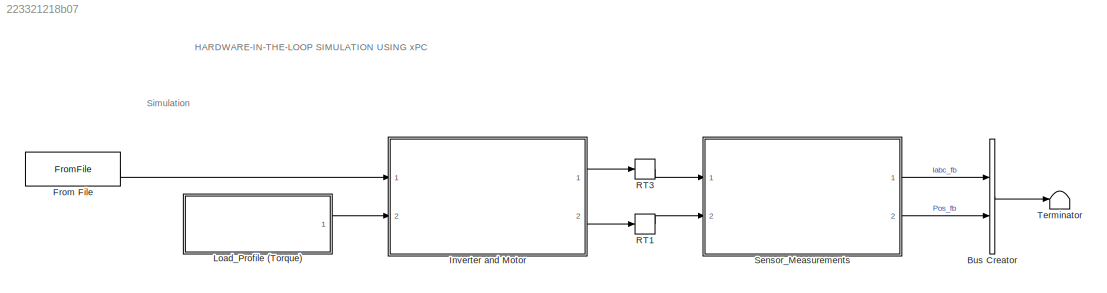
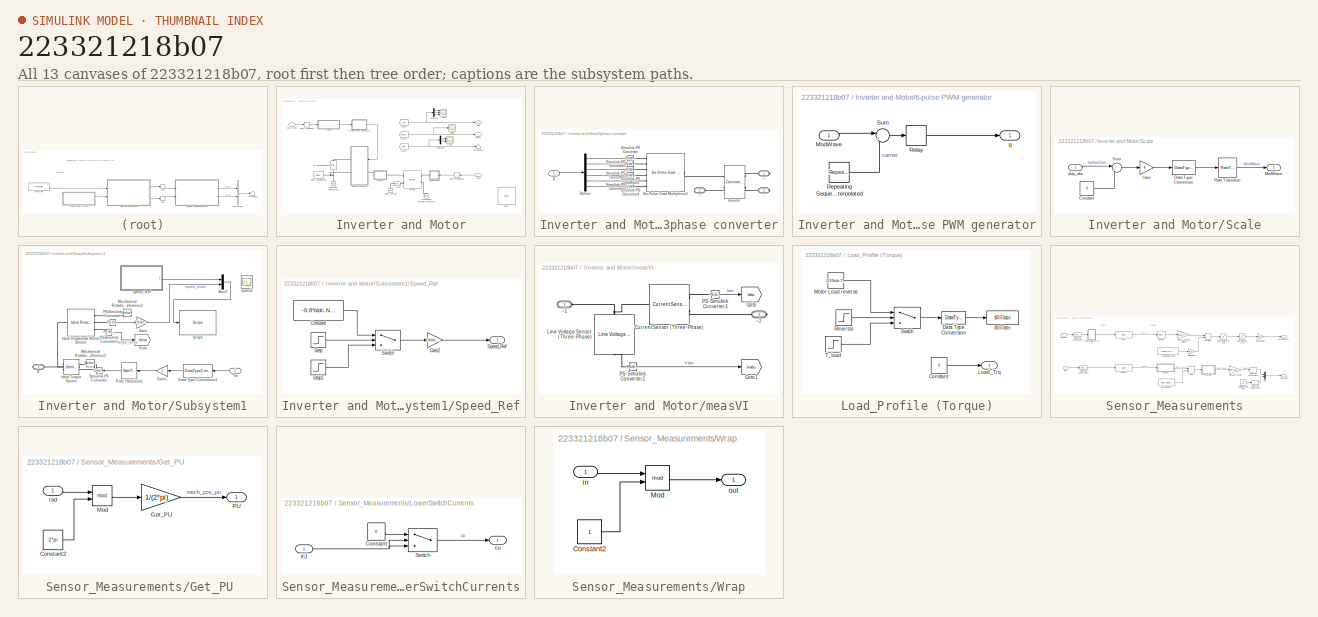
[diagram: thumbnail index - all 13 canvases of the model, root first then tree order]
MODEL slx_223321218b07
KIND model
CONFIG AbsTol = auto
CONFIG EnableMultiTasking = on
CONFIG FixedStep = auto
CONFIG MaxStep = auto
CONFIG MinStep = auto
CONFIG RelTol = 1e-3
CONFIG SampleTimeConstraint = Unconstrained
CONFIG Solver = FixedStepDiscrete
CONFIG SolverName = FixedStepDiscrete
CONFIG StartTime = 0.0
CONFIG StopTime = 2
BLOCK [BusCreator] Bus Creator
  DisplayOption = bar
  InheritFromInputs = on
  Inputs = 2
  Ports = [2, 1]
BLOCK [FromFile] From File
  FileName = dutycycle_xPC.mat
  SampleTime = 0
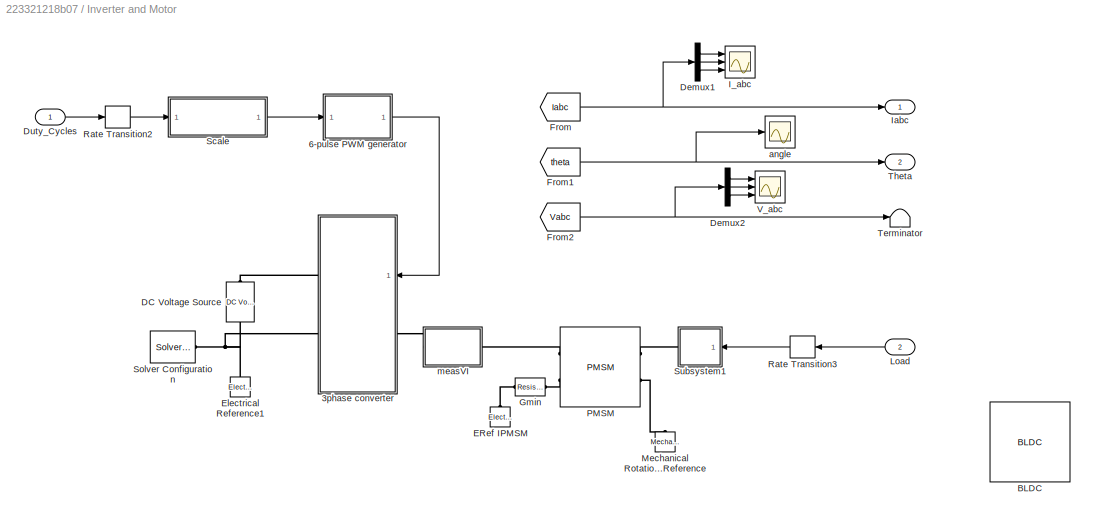
BLOCK [SubSystem] Inverter and Motor
  Ports = [2, 2]
  RequestExecContextInheritance = off
  VariantControl = get_param([bdroot '/Plant'],'Value')=='0'
BLOCK [SubSystem] Inverter and Motor/3phase converter
  NameLocation = top
  Ports = [1, 0, 0, 0, 0, 1, 2]
  RequestExecContextInheritance = off
BLOCK [PMIOPort] Inverter and Motor/3phase converter/+
  Side = Right
BLOCK [PMIOPort] Inverter and Motor/3phase converter/-
  Port = 3
  Side = Right
BLOCK [Demux] Inverter and Motor/3phase converter/Demux
  Outputs = 6
  Ports = [1, 6]
BLOCK [Reference] Inverter and Motor/3phase converter/Inverter  REF=ee_lib/Semiconductors &
Converters/Converters/Converter
(Three-Phase)
  Ports = [0, 0, 0, 0, 0, 2, 2]
  SourceBlock = ee_lib/Semiconductors &\nConverters/Converters/Converter\n(Three-Phase)
  SourceProductBaseCode = PS
  SourceType = Converter\n(Three-Phase)
BLOCK [Reference] Inverter and Motor/3phase converter/Simulink-PS Converter  REF=nesl_utility/Simulink-PS
Converter
  Ports = [1, 0, 0, 0, 0, 0, 1]
  SourceBlock = nesl_utility/Simulink-PS\nConverter
  SourceProductBaseCode = SS
  SourceType = Simulink-PS\nConverter
BLOCK [Reference] Inverter and Motor/3phase converter/Simulink-PS Converter1  REF=nesl_utility/Simulink-PS
Converter
  Ports = [1, 0, 0, 0, 0, 0, 1]
  SourceBlock = nesl_utility/Simulink-PS\nConverter
  SourceProductBaseCode = SS
  SourceType = Simulink-PS\nConverter
BLOCK [Reference] Inverter and Motor/3phase converter/Simulink-PS Converter2  REF=nesl_utility/Simulink-PS
Converter
  Ports = [1, 0, 0, 0, 0, 0, 1]
  SourceBlock = nesl_utility/Simulink-PS\nConverter
  SourceProductBaseCode = SS
  SourceType = Simulink-PS\nConverter
BLOCK [Reference] Inverter and Motor/3phase converter/Simulink-PS Converter3  REF=nesl_utility/Simulink-PS
Converter
  Ports = [1, 0, 0, 0, 0, 0, 1]
  SourceBlock = nesl_utility/Simulink-PS\nConverter
  SourceProductBaseCode = SS
  SourceType = Simulink-PS\nConverter
BLOCK [Reference] Inverter and Motor/3phase converter/Simulink-PS Converter4  REF=nesl_utility/Simulink-PS
Converter
  Ports = [1, 0, 0, 0, 0, 0, 1]
  SourceBlock = nesl_utility/Simulink-PS\nConverter
  SourceProductBaseCode = SS
  SourceType = Simulink-PS\nConverter
BLOCK [Reference] Inverter and Motor/3phase converter/Simulink-PS Converter5  REF=nesl_utility/Simulink-PS
Converter
  Ports = [1, 0, 0, 0, 0, 0, 1]
  SourceBlock = nesl_utility/Simulink-PS\nConverter
  SourceProductBaseCode = SS
  SourceType = Simulink-PS\nConverter
BLOCK [Reference] Inverter and Motor/3phase converter/Six-Pulse Gate Multiplexer1  REF=ee_lib/Semiconductors &
Converters/Converters/Six-Pulse Gate
Multiplexer
  Ports = [0, 0, 0, 0, 0, 6, 1]
  SourceBlock = ee_lib/Semiconductors &\nConverters/Converters/Six-Pulse Gate\nMultiplexer
  SourceProductBaseCode = PS
  SourceType = Six-Pulse Gate\nMultiplexer
BLOCK [Inport] Inverter and Motor/3phase converter/g
BLOCK [PMIOPort] Inverter and Motor/3phase converter/~
  Port = 2
  Side = Left
BLOCK [SubSystem] Inverter and Motor/6-pulse PWM generator
  Ports = [1, 1]
  RequestExecContextInheritance = off
BLOCK [Inport] Inverter and Motor/6-pulse PWM generator/ModWave
BLOCK [Relay] Inverter and Motor/6-pulse PWM generator/Relay
BLOCK [Reference] Inverter and Motor/6-pulse PWM generator/Repeating Sequence Interpolated  REF=simulink/Sources/Repeating
Sequence
Interpolated
  Ports = [0, 1]
  SourceBlock = simulink/Sources/Repeating\nSequence\nInterpolated
  SourceProductBaseCode = SL
  SourceType = Repeating Sequence Interpolated
BLOCK [Sum] Inverter and Motor/6-pulse PWM generator/Sum
  Inputs = |+-
  Ports = [2, 1]
BLOCK [Outport] Inverter and Motor/6-pulse PWM generator/g
  NameLocation = top
BLOCK [Reference] Inverter and Motor/BLDC  REF=ee_lib/Electromechanical/Permanent Magnet/BLDC
  Commented = on
  Ports = [0, 0, 0, 0, 0, 2, 2]
  SourceBlock = ee_lib/Electromechanical/Permanent Magnet/BLDC
  SourceProductBaseCode = PS
  SourceType = BLDC
BLOCK [Reference] Inverter and Motor/DC Voltage Source  REF=fl_lib/Electrical/Electrical Sources/DC Voltage Source
  NameLocation = left
  Ports = [0, 0, 0, 0, 0, 1, 1]
  SourceBlock = fl_lib/Electrical/Electrical Sources/DC Voltage Source
  SourceProductBaseCode = SS
  SourceType = DC Voltage Source
BLOCK [Demux] Inverter and Motor/Demux1
  Commented = on
  Outputs = 3
  Ports = [1, 3]
BLOCK [Demux] Inverter and Motor/Demux2
  Commented = on
  Outputs = 3
  Ports = [1, 3]
BLOCK [Inport] Inverter and Motor/Duty_Cycles
BLOCK [Reference] Inverter and Motor/ERef IPMSM  REF=fl_lib/Electrical/Electrical Elements/Electrical Reference
  NameLocation = right
  Ports = [0, 0, 0, 0, 0, 1]
  SourceBlock = fl_lib/Electrical/Electrical Elements/Electrical Reference
  SourceProductBaseCode = MT,SS
  SourceType = Electrical Reference
BLOCK [Reference] Inverter and Motor/Electrical Reference1  REF=fl_lib/Electrical/Electrical Elements/Electrical Reference
  NameLocation = right
  Ports = [0, 0, 0, 0, 0, 1]
  SourceBlock = fl_lib/Electrical/Electrical Elements/Electrical Reference
  SourceProductBaseCode = SS
  SourceType = Electrical Reference
BLOCK [From] Inverter and Motor/From
  GotoTag = Iabc
  TagVisibility = global
BLOCK [From] Inverter and Motor/From1
  GotoTag = theta
  TagVisibility = global
BLOCK [From] Inverter and Motor/From2
  GotoTag = Vabc
  TagVisibility = global
BLOCK [Reference] Inverter and Motor/Gmin  REF=fl_lib/Electrical/Electrical Elements/Resistor
  Ports = [0, 0, 0, 0, 0, 1, 1]
  SourceBlock = fl_lib/Electrical/Electrical Elements/Resistor
  SourceProductBaseCode = MT,SS
  SourceType = Resistor
BLOCK [Scope] Inverter and Motor/I_abc
  Commented = on
  Floating = off
  NumInputPorts = 3
  Ports = [3]
  ScopeSpecificationString = Simulink.scopes.TimeScopeBlockCfg('CurrentConfiguration', extmgr.ConfigurationSet(extmgr.Configuration('Core','General UI',true),extmgr.Configuration('Core','Source UI',true),extmgr.Configuration('Sources','WiredSimulink',true,'DataLoggingVariableName','ScopeData2'),extmgr.Configuration('Visuals','Time Domain',true,'SerializedDisplays',{struct('MinYLimReal','-42.01578','MaxYLimReal','42.12551','YL...<+2685ch>
BLOCK [Outport] Inverter and Motor/Iabc
BLOCK [Inport] Inverter and Motor/Load
  Port = 2
BLOCK [Reference] Inverter and Motor/Mechanical Rotational Reference  REF=fl_lib/Mechanical/Rotational Elements/Mechanical
Rotational Reference
  NameLocation = right
  Ports = [0, 0, 0, 0, 0, 1]
  SourceBlock = fl_lib/Mechanical/Rotational Elements/Mechanical\nRotational Reference
  SourceProductBaseCode = SS
  SourceType = Mechanical\nRotational Reference
BLOCK [Reference] Inverter and Motor/PMSM  REF=ee_lib/Electromechanical/Permanent Magnet/PMSM
  Ports = [0, 0, 0, 0, 0, 2, 2]
  SourceBlock = ee_lib/Electromechanical/Permanent Magnet/PMSM
  SourceProductBaseCode = PS
  SourceType = PMSM
BLOCK [RateTransition] Inverter and Motor/Rate Transition2
  Deterministic = off
  OutPortSampleTime = Ts_motor_simscape
BLOCK [RateTransition] Inverter and Motor/Rate Transition3
  Deterministic = off
  NameLocation = top
  OutPortSampleTime = Ts_motor_simscape
BLOCK [SubSystem] Inverter and Motor/Scale
  Ports = [1, 1]
  RequestExecContextInheritance = off
BLOCK [Constant] Inverter and Motor/Scale/Constant
  OutDataTypeStr = single
  SampleTime = Ts_motor_simscape
  Value = 0
BLOCK [DataTypeConversion] Inverter and Motor/Scale/Data Type Conversion
  RndMeth = Floor
  SaturateOnIntegerOverflow = off
BLOCK [Gain] Inverter and Motor/Scale/Gain
BLOCK [Outport] Inverter and Motor/Scale/ModWave
BLOCK [RateTransition] Inverter and Motor/Scale/Rate Transition
BLOCK [Sum] Inverter and Motor/Scale/Sum
  Inputs = |++
  Ports = [2, 1]
BLOCK [Inport] Inverter and Motor/Scale/duty_abc
BLOCK [Reference] Inverter and Motor/Solver Configuration  REF=nesl_utility/Solver
Configuration
  Ports = [0, 0, 0, 0, 0, 0, 1]
  SourceBlock = nesl_utility/Solver\nConfiguration
  SourceProductBaseCode = SS
  SourceType = Solver\nConfiguration
BLOCK [SubSystem] Inverter and Motor/Subsystem1
  NameLocation = top
  Ports = [1, 0, 0, 0, 0, 0, 1]
  RequestExecContextInheritance = off
BLOCK [DataTypeConversion] Inverter and Motor/Subsystem1/Data Type Conversion1
  NameLocation = top
  RndMeth = Floor
  SaturateOnIntegerOverflow = off
BLOCK [Gain] Inverter and Motor/Subsystem1/Gain
  Gain = 1/bldc.N_base
BLOCK [Gain] Inverter and Motor/Subsystem1/Gain1
  Gain = -1
  NameLocation = top
BLOCK [Goto] Inverter and Motor/Subsystem1/Goto
  GotoTag = theta
  TagVisibility = global
BLOCK [Reference] Inverter and Motor/Subsystem1/Ideal Rotational Motion Sensor  REF=fl_lib/Mechanical/Mechanical Sensors/Ideal Rotational
Motion Sensor
  Ports = [0, 0, 0, 0, 0, 1, 3]
  SourceBlock = fl_lib/Mechanical/Mechanical Sensors/Ideal Rotational\nMotion Sensor
  SourceProductBaseCode = SS
  SourceType = Ideal Rotational\nMotion Sensor
BLOCK [Reference] Inverter and Motor/Subsystem1/Ideal Torque Source  REF=fl_lib/Mechanical/Mechanical Sources/Ideal Torque Source
  NameLocation = top
  Ports = [0, 0, 0, 0, 0, 1, 2]
  SourceBlock = fl_lib/Mechanical/Mechanical Sources/Ideal Torque Source
  SourceProductBaseCode = SS
  SourceType = Ideal Torque Source
BLOCK [Reference] Inverter and Motor/Subsystem1/Mechanical Rotational Reference1  REF=fl_lib/Mechanical/Rotational Elements/Mechanical
Rotational Reference
  NameLocation = top
  Ports = [0, 0, 0, 0, 0, 1]
  SourceBlock = fl_lib/Mechanical/Rotational Elements/Mechanical\nRotational Reference
  SourceProductBaseCode = SS
  SourceType = Mechanical\nRotational Reference
BLOCK [Reference] Inverter and Motor/Subsystem1/Mechanical Rotational Reference2  REF=fl_lib/Mechanical/Rotational Elements/Mechanical
Rotational Reference
  NameLocation = top
  Ports = [0, 0, 0, 0, 0, 1]
  SourceBlock = fl_lib/Mechanical/Rotational Elements/Mechanical\nRotational Reference
  SourceProductBaseCode = SS
  SourceType = Mechanical\nRotational Reference
BLOCK [Mux] Inverter and Motor/Subsystem1/Mux2
  DisplayOption = bar
  Inputs = 2
  Ports = [2, 1]
BLOCK [Reference] Inverter and Motor/Subsystem1/PS-Simulink Converter  REF=nesl_utility/PS-Simulink
Converter
  Ports = [0, 1, 0, 0, 0, 1]
  SourceBlock = nesl_utility/PS-Simulink\nConverter
  SourceProductBaseCode = SS
  SourceType = PS-Simulink\nConverter
BLOCK [Reference] Inverter and Motor/Subsystem1/PS-Simulink Converter1  REF=nesl_utility/PS-Simulink
Converter
  Ports = [0, 1, 0, 0, 0, 1]
  SourceBlock = nesl_utility/PS-Simulink\nConverter
  SourceProductBaseCode = SS
  SourceType = PS-Simulink\nConverter
BLOCK [PMIOPort] Inverter and Motor/Subsystem1/R 
  Side = Right
BLOCK [RateTransition] Inverter and Motor/Subsystem1/Rate Transition1
  NameLocation = top
BLOCK [Reference] Inverter and Motor/Subsystem1/Scope   REF=slrtlib/Displays and
Logging/Scope 
  Ports = [1]
  SourceBlock = slrtlib/Displays and\nLogging/Scope
  SourceProductBaseCode = XP
  SourceType = xpcscopeblock
BLOCK [Reference] Inverter and Motor/Subsystem1/Simulink-PS Converter  REF=nesl_utility/Simulink-PS
Converter
  NameLocation = top
  Ports = [1, 0, 0, 0, 0, 0, 1]
  SourceBlock = nesl_utility/Simulink-PS\nConverter
  SourceProductBaseCode = SS
  SourceType = Simulink-PS\nConverter
BLOCK [SubSystem] Inverter and Motor/Subsystem1/Speed_Ref
  Ports = [0, 1]
  RequestExecContextInheritance = off
BLOCK [Constant] Inverter and Motor/Subsystem1/Speed_Ref/Constant
  Value = -0.8*bldc.N_base
BLOCK [Gain] Inverter and Motor/Subsystem1/Speed_Ref/Gain2
  Gain = 1/bldc.N_base
BLOCK [Outport] Inverter and Motor/Subsystem1/Speed_Ref/Speed_Ref
BLOCK [Step] Inverter and Motor/Subsystem1/Speed_Ref/Step
  Time = 1.2
BLOCK [Step] Inverter and Motor/Subsystem1/Speed_Ref/Step1
  After = 0.8*bldc.N_base
  Before = 0.2*bldc.N_base
  Time = 0.5
BLOCK [Switch] Inverter and Motor/Subsystem1/Speed_Ref/Switch
  Criteria = u2 > Threshold
  InputSameDT = off
  SaturateOnIntegerOverflow = off
BLOCK [Inport] Inverter and Motor/Subsystem1/Tm
BLOCK [Scope] Inverter and Motor/Subsystem1/speed1
  Commented = on
  Floating = off
  NumInputPorts = 1
  Ports = [1]
  ScopeSpecificationString = Simulink.scopes.TimeScopeBlockCfg('CurrentConfiguration', extmgr.ConfigurationSet(extmgr.Configuration('Core','General UI',true,'FigureColor',[1 1 1]),extmgr.Configuration('Core','Source UI',true),extmgr.Configuration('Sources','WiredSimulink',true,'DataLoggingVariableName','ScopeData1'),extmgr.Configuration('Visuals','Time Domain',true,'SerializedDisplays',{struct('MinYLimReal','-1.01394','MaxYLi...<+1678ch>
BLOCK [Terminator] Inverter and Motor/Terminator
BLOCK [Outport] Inverter and Motor/Theta
  Port = 2
BLOCK [Scope] Inverter and Motor/V_abc
  Commented = on
  Floating = off
  NameLocation = right
  NumInputPorts = 3
  Ports = [3]
  ScopeSpecificationString = Simulink.scopes.TimeScopeBlockCfg('CurrentConfiguration', extmgr.ConfigurationSet(extmgr.Configuration('Core','General UI',true),extmgr.Configuration('Core','Source UI',true),extmgr.Configuration('Sources','WiredSimulink',true,'DataLoggingVariableName','ScopeData3'),extmgr.Configuration('Visuals','Time Domain',true,'SerializedDisplays',{struct('MinYLimReal','-31.75034','MaxYLimReal','31.75015','YL...<+2730ch>
BLOCK [Scope] Inverter and Motor/angle
  Commented = on
  Floating = off
  NameLocation = right
  NumInputPorts = 1
  Ports = [1]
  ScopeSpecificationString = Simulink.scopes.TimeScopeBlockCfg('CurrentConfiguration', extmgr.ConfigurationSet(extmgr.Configuration('Core','General UI',true),extmgr.Configuration('Core','Source UI',true),extmgr.Configuration('Sources','WiredSimulink',true,'DataLoggingVariableName','ScopeData5'),extmgr.Configuration('Visuals','Time Domain',true,'SerializedDisplays',{struct('MinYLimReal','-46.99352','MaxYLimReal','420.4476','YL...<+1432ch>
BLOCK [SubSystem] Inverter and Motor/measVI
  Ports = [0, 0, 0, 0, 0, 1, 1]
  RequestExecContextInheritance = off
BLOCK [Reference] Inverter and Motor/measVI/Current Sensor (Three-Phase)  REF=ee_lib/Sensors &
Transducers/Current Sensor
(Three-Phase)
  Ports = [0, 0, 0, 0, 0, 1, 2]
  SourceBlock = ee_lib/Sensors &\nTransducers/Current Sensor\n(Three-Phase)
  SourceProductBaseCode = PS
  SourceType = Current Sensor\n(Three-Phase)
BLOCK [Goto] Inverter and Motor/measVI/Goto
  GotoTag = Iabc
  TagVisibility = global
BLOCK [Goto] Inverter and Motor/measVI/Goto1
  GotoTag = Vabc
  TagVisibility = global
BLOCK [Reference] Inverter and Motor/measVI/Line Voltage Sensor (Three-Phase)  REF=ee_lib/Sensors &
Transducers/Line Voltage Sensor
(Three-Phase)
  NameLocation = right
  Ports = [0, 0, 0, 0, 0, 1, 1]
  SourceBlock = ee_lib/Sensors &\nTransducers/Line Voltage Sensor\n(Three-Phase)
  SourceProductBaseCode = PS
  SourceType = Line Voltage Sensor\n(Three-Phase)
BLOCK [Reference] Inverter and Motor/measVI/PS-Simulink Converter2  REF=nesl_utility/PS-Simulink
Converter
  Ports = [0, 1, 0, 0, 0, 1]
  SourceBlock = nesl_utility/PS-Simulink\nConverter
  SourceProductBaseCode = SS
  SourceType = PS-Simulink\nConverter
BLOCK [Reference] Inverter and Motor/measVI/PS-Simulink Converter3  REF=nesl_utility/PS-Simulink
Converter
  Ports = [0, 1, 0, 0, 0, 1]
  SourceBlock = nesl_utility/PS-Simulink\nConverter
  SourceProductBaseCode = SS
  SourceType = PS-Simulink\nConverter
BLOCK [PMIOPort] Inverter and Motor/measVI/~1
  Side = Left
BLOCK [PMIOPort] Inverter and Motor/measVI/~2
  Port = 2
  Side = Right
BLOCK [SubSystem] Load_Profile (Torque)
  Ports = [0, 1]
  RequestExecContextInheritance = off
BLOCK [Constant] Load_Profile (Torque)/Constant
  Value = 0
BLOCK [DataTypeConversion] Load_Profile (Torque)/Data Type Conversion
  Commented = on
  OutDataTypeStr = single
  RndMeth = Floor
  SaturateOnIntegerOverflow = off
BLOCK [Reference] Load_Profile (Torque)/IIR Filter  REF=mcbcontrolslib/IIR Filter
  Commented = on
  Ports = [1, 1]
  SourceBlock = mcbcontrolslib/IIR Filter
  SourceProductBaseCode = MT
  SourceType = IIR Filter
BLOCK [Outport] Load_Profile (Torque)/Load_Trq
  VectorParamsAs1DForOutWhenUnconnected = off
BLOCK [Constant] Load_Profile (Torque)/Motor Load reverse 
  Commented = on
  OutDataTypeStr = dataType
  SampleTime = -1
  Value = -0.5*bldc.T_rated
BLOCK [Step] Load_Profile (Torque)/Reversal
  Commented = on
  NameLocation = top
  SampleTime = Ts_simulink
  Time = 1.2
BLOCK [Switch] Load_Profile (Torque)/Switch
  Commented = on
  Criteria = u2 > Threshold
  InputSameDT = off
  SaturateOnIntegerOverflow = off
BLOCK [Step] Load_Profile (Torque)/T_load
  After = 0.5*bldc.T_rated
  Before = 0.05*bldc.T_rated
  Commented = on
  SampleTime = Ts_simulink
  Time = 0.8
BLOCK [RateTransition] RT1
  Deterministic = off
  OutPortSampleTime = Ts_simulink
BLOCK [RateTransition] RT3
  Deterministic = off
  OutPortSampleTime = Ts_simulink
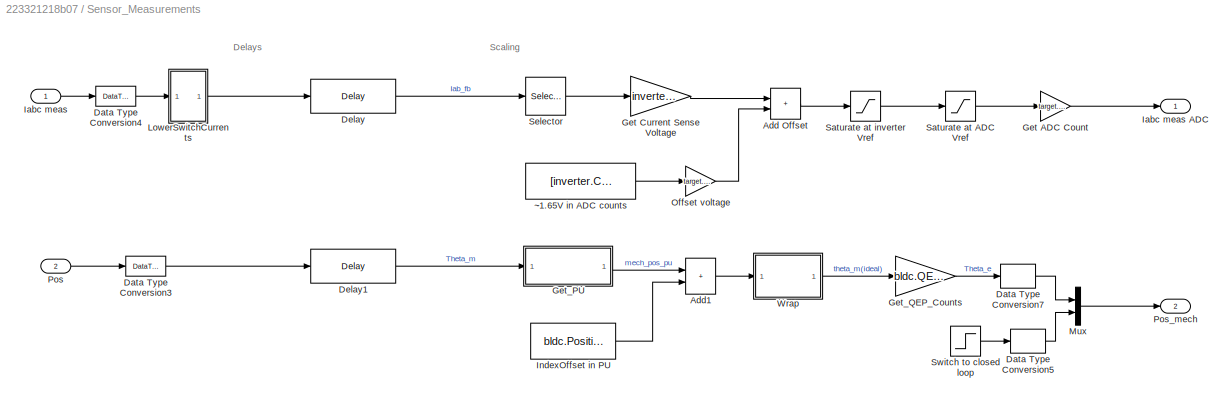
BLOCK [SubSystem] Sensor_Measurements
  Ports = [2, 2]
  RequestExecContextInheritance = off
BLOCK [Sum] Sensor_Measurements/Add Offset
  IconShape = rectangular
  Ports = [2, 1]
  RndMeth = Simplest
BLOCK [Sum] Sensor_Measurements/Add1
  IconShape = rectangular
  Ports = [2, 1]
  RndMeth = Simplest
BLOCK [DataTypeConversion] Sensor_Measurements/Data Type Conversion3
  OutDataTypeStr = single
  RndMeth = Simplest
  SaturateOnIntegerOverflow = off
BLOCK [DataTypeConversion] Sensor_Measurements/Data Type Conversion4
  OutDataTypeStr = single
  RndMeth = Simplest
  SaturateOnIntegerOverflow = off
BLOCK [DataTypeConversion] Sensor_Measurements/Data Type Conversion5
  OutDataTypeStr = uint16
  RndMeth = Simplest
  SaturateOnIntegerOverflow = off
BLOCK [DataTypeConversion] Sensor_Measurements/Data Type Conversion7
  OutDataTypeStr = uint16
  RndMeth = Simplest
  SaturateOnIntegerOverflow = off
BLOCK [Delay] Sensor_Measurements/Delay
  DelayLength = PI_params.delay_Currents
  InputPortMap = u0
  Ports = [1, 1]
BLOCK [Delay] Sensor_Measurements/Delay1
  DelayLength = PI_params.delay_Position
  InputPortMap = u0
  Ports = [1, 1]
BLOCK [Gain] Sensor_Measurements/Get ADC Count
  Gain = target.ADC_MaxCount/target.ADC_Vref
  OutDataTypeStr = uint16
  OutMax = target.ADC_MaxCount
  OutMin = 0
  RndMeth = Simplest
BLOCK [Gain] Sensor_Measurements/Get Current Sense Voltage
  Gain = inverter.ISenseVoltPerAmp
  OutDataTypeStr = Inherit: Same as input
  RndMeth = Simplest
BLOCK [SubSystem] Sensor_Measurements/Get_PU 
  Ports = [1, 1]
  RequestExecContextInheritance = off
BLOCK [Constant] Sensor_Measurements/Get_PU /Constant2
  OutDataTypeStr = single
  SampleTime = -1
  Value = 2*pi
BLOCK [Gain] Sensor_Measurements/Get_PU /Get_PU
  Gain = 1/(2*pi)
  OutDataTypeStr = Inherit: Same as input
  RndMeth = Simplest
BLOCK [Math] Sensor_Measurements/Get_PU /Mod
  Operator = mod
  Ports = [2, 1]
BLOCK [Outport] Sensor_Measurements/Get_PU /PU
  VectorParamsAs1DForOutWhenUnconnected = off
BLOCK [Inport] Sensor_Measurements/Get_PU /rad
BLOCK [Gain] Sensor_Measurements/Get_QEP_Counts
  Gain = bldc.QEPSlits*4
  OutDataTypeStr = uint16
  RndMeth = Simplest
BLOCK [Inport] Sensor_Measurements/Iabc meas
BLOCK [Outport] Sensor_Measurements/Iabc meas ADC
  VectorParamsAs1DForOutWhenUnconnected = off
BLOCK [Constant] Sensor_Measurements/IndexOffset in PU
  OutDataTypeStr = single
  SampleTime = -1
  Value = bldc.PositionOffset
BLOCK [SubSystem] Sensor_Measurements/LowerSwitchCurrents
  Ports = [1, 1]
  RequestExecContextInheritance = off
BLOCK [Constant] Sensor_Measurements/LowerSwitchCurrents/Constant
  Value = 0
BLOCK [Inport] Sensor_Measurements/LowerSwitchCurrents/In1
BLOCK [Switch] Sensor_Measurements/LowerSwitchCurrents/Switch
  Criteria = u2 > Threshold
  InputSameDT = off
  SaturateOnIntegerOverflow = off
BLOCK [Outport] Sensor_Measurements/LowerSwitchCurrents/cu
BLOCK [Mux] Sensor_Measurements/Mux
  DisplayOption = bar
  Inputs = 2
  Ports = [2, 1]
BLOCK [Gain] Sensor_Measurements/Offset voltage
  Gain = target.ADC_Vref / target.ADC_MaxCount
  RndMeth = Simplest
BLOCK [Inport] Sensor_Measurements/Pos
  Port = 2
BLOCK [Outport] Sensor_Measurements/Pos_mech
  Port = 2
BLOCK [Saturate] Sensor_Measurements/Saturate at ADC Vref
  LowerLimit = 0
  UpperLimit = target.ADC_Vref
BLOCK [Saturate] Sensor_Measurements/Saturate at inverter Vref
  LowerLimit = 0
  UpperLimit = inverter.ISenseVref
BLOCK [Selector] Sensor_Measurements/Selector
  IndexOptions = Index vector (dialog)
  Indices = [1 2 3]
  InputPortWidth = 3
  OutputSizes = 1
  Ports = [1, 1]
BLOCK [Step] Sensor_Measurements/Switch to closed loop 
  SampleTime = Ts_motor
  Time = 0.1
BLOCK [SubSystem] Sensor_Measurements/Wrap
  Ports = [1, 1]
  RequestExecContextInheritance = off
BLOCK [Constant] Sensor_Measurements/Wrap/Constant2
  OutDataTypeStr = single
  SampleTime = -1
BLOCK [Math] Sensor_Measurements/Wrap/Mod
  Operator = mod
  Ports = [2, 1]
BLOCK [Inport] Sensor_Measurements/Wrap/in
BLOCK [Outport] Sensor_Measurements/Wrap/out
  VectorParamsAs1DForOutWhenUnconnected = off
BLOCK [Constant] Sensor_Measurements/~1.65V in ADC counts
  OutDataTypeStr = single
  SampleTime = -1
  Value = [inverter.CtSensAOffset inverter.CtSensBOffset  inverter.CtSensCOffset]
BLOCK [Terminator] Terminator
ANNOTATION (root): HARDWARE-IN-THE-LOOP SIMULATION USING xPC
ANNOTATION (root): Simulation
ANNOTATION Sensor_Measurements: Delays
ANNOTATION Sensor_Measurements: Scaling
LINE Bus Creator:1 -> Terminator:1
LINE From File:1 -> Inverter and Motor:1
LINE Inverter and Motor/3phase converter/Demux:1 -> Inverter and Motor/3phase converter/Simulink-PS Converter:1
LINE Inverter and Motor/3phase converter/Demux:2 -> Inverter and Motor/3phase converter/Simulink-PS Converter1:1
LINE Inverter and Motor/3phase converter/Demux:3 -> Inverter and Motor/3phase converter/Simulink-PS Converter2:1
LINE Inverter and Motor/3phase converter/Demux:4 -> Inverter and Motor/3phase converter/Simulink-PS Converter3:1
LINE Inverter and Motor/3phase converter/Demux:5 -> Inverter and Motor/3phase converter/Simulink-PS Converter4:1
LINE Inverter and Motor/3phase converter/Demux:6 -> Inverter and Motor/3phase converter/Simulink-PS Converter5:1
LINE Inverter and Motor/3phase converter/g:1 -> Inverter and Motor/3phase converter/Demux:1
LINE Inverter and Motor/6-pulse PWM generator/ModWave:1 -> Inverter and Motor/6-pulse PWM generator/Sum:1
LINE Inverter and Motor/6-pulse PWM generator/Relay:1 -> Inverter and Motor/6-pulse PWM generator/g:1
LINE Inverter and Motor/6-pulse PWM generator/Repeating Sequence Interpolated:1 -> Inverter and Motor/6-pulse PWM generator/Sum:2
LINE Inverter and Motor/6-pulse PWM generator/Sum:1 -> Inverter and Motor/6-pulse PWM generator/Relay:1
LINE Inverter and Motor/6-pulse PWM generator:1 -> Inverter and Motor/3phase converter:1
LINE Inverter and Motor/Demux1:1 -> Inverter and Motor/I_abc:1
LINE Inverter and Motor/Demux1:2 -> Inverter and Motor/I_abc:2
LINE Inverter and Motor/Demux1:3 -> Inverter and Motor/I_abc:3
LINE Inverter and Motor/Demux2:1 -> Inverter and Motor/V_abc:1
LINE Inverter and Motor/Demux2:2 -> Inverter and Motor/V_abc:2
LINE Inverter and Motor/Demux2:3 -> Inverter and Motor/V_abc:3
LINE Inverter and Motor/Duty_Cycles:1 -> Inverter and Motor/Rate Transition2:1
NET Inverter and Motor/From1:1 -> Inverter and Motor/Theta:1, Inverter and Motor/angle:1
NET Inverter and Motor/From2:1 -> Inverter and Motor/Demux2:1, Inverter and Motor/Terminator:1
NET Inverter and Motor/From:1 -> Inverter and Motor/Demux1:1, Inverter and Motor/Iabc:1
LINE Inverter and Motor/Load:1 -> Inverter and Motor/Rate Transition3:1
LINE Inverter and Motor/Rate Transition2:1 -> Inverter and Motor/Scale:1
LINE Inverter and Motor/Rate Transition3:1 -> Inverter and Motor/Subsystem1:1
LINE Inverter and Motor/Scale/Constant:1 -> Inverter and Motor/Scale/Sum:2
LINE Inverter and Motor/Scale/Data Type Conversion:1 -> Inverter and Motor/Scale/Rate Transition:1
LINE Inverter and Motor/Scale/Gain:1 -> Inverter and Motor/Scale/Data Type Conversion:1
LINE Inverter and Motor/Scale/Rate Transition:1 -> Inverter and Motor/Scale/ModWave:1
LINE Inverter and Motor/Scale/Sum:1 -> Inverter and Motor/Scale/Gain:1
LINE Inverter and Motor/Scale/duty_abc:1 -> Inverter and Motor/Scale/Sum:1
LINE Inverter and Motor/Scale:1 -> Inverter and Motor/6-pulse PWM generator:1
LINE Inverter and Motor/Subsystem1/Data Type Conversion1:1 -> Inverter and Motor/Subsystem1/Gain1:1
LINE Inverter and Motor/Subsystem1/Gain1:1 -> Inverter and Motor/Subsystem1/Rate Transition1:1
LINE Inverter and Motor/Subsystem1/Gain:1 -> Inverter and Motor/Subsystem1/Mux2:2
LINE Inverter and Motor/Subsystem1/Mux2:1 -> Inverter and Motor/Subsystem1/Scope :1
LINE Inverter and Motor/Subsystem1/PS-Simulink Converter1:1 -> Inverter and Motor/Subsystem1/Goto:1
LINE Inverter and Motor/Subsystem1/PS-Simulink Converter:1 -> Inverter and Motor/Subsystem1/Gain:1
LINE Inverter and Motor/Subsystem1/Rate Transition1:1 -> Inverter and Motor/Subsystem1/Simulink-PS Converter:1
LINE Inverter and Motor/Subsystem1/Speed_Ref/Constant:1 -> Inverter and Motor/Subsystem1/Speed_Ref/Switch:1
LINE Inverter and Motor/Subsystem1/Speed_Ref/Gain2:1 -> Inverter and Motor/Subsystem1/Speed_Ref/Speed_Ref:1
LINE Inverter and Motor/Subsystem1/Speed_Ref/Step1:1 -> Inverter and Motor/Subsystem1/Speed_Ref/Switch:3
LINE Inverter and Motor/Subsystem1/Speed_Ref/Step:1 -> Inverter and Motor/Subsystem1/Speed_Ref/Switch:2
LINE Inverter and Motor/Subsystem1/Speed_Ref/Switch:1 -> Inverter and Motor/Subsystem1/Speed_Ref/Gain2:1
LINE Inverter and Motor/Subsystem1/Speed_Ref:1 -> Inverter and Motor/Subsystem1/Mux2:1
LINE Inverter and Motor/Subsystem1/Tm:1 -> Inverter and Motor/Subsystem1/Data Type Conversion1:1
LINE Inverter and Motor/measVI/PS-Simulink Converter2:1 -> Inverter and Motor/measVI/Goto1:1
LINE Inverter and Motor/measVI/PS-Simulink Converter3:1 -> Inverter and Motor/measVI/Goto:1
LINE Inverter and Motor:1 -> RT3:1
LINE Inverter and Motor:2 -> RT1:1
LINE Load_Profile (Torque)/Constant:1 -> Load_Profile (Torque)/Load_Trq:1
LINE Load_Profile (Torque)/Data Type Conversion:1 -> Load_Profile (Torque)/IIR Filter:1
LINE Load_Profile (Torque)/Motor Load reverse :1 -> Load_Profile (Torque)/Switch:1
LINE Load_Profile (Torque)/Reversal:1 -> Load_Profile (Torque)/Switch:2
LINE Load_Profile (Torque)/Switch:1 -> Load_Profile (Torque)/Data Type Conversion:1
LINE Load_Profile (Torque)/T_load:1 -> Load_Profile (Torque)/Switch:3
LINE Load_Profile (Torque):1 -> Inverter and Motor:2
LINE RT1:1 -> Sensor_Measurements:2
LINE RT3:1 -> Sensor_Measurements:1
LINE Sensor_Measurements/Add Offset:1 -> Sensor_Measurements/Saturate at inverter Vref:1
LINE Sensor_Measurements/Add1:1 -> Sensor_Measurements/Wrap:1
LINE Sensor_Measurements/Data Type Conversion3:1 -> Sensor_Measurements/Delay1:1
LINE Sensor_Measurements/Data Type Conversion4:1 -> Sensor_Measurements/LowerSwitchCurrents:1
LINE Sensor_Measurements/Data Type Conversion5:1 -> Sensor_Measurements/Mux:2
LINE Sensor_Measurements/Data Type Conversion7:1 -> Sensor_Measurements/Mux:1
LINE Sensor_Measurements/Delay1:1 -> Sensor_Measurements/Get_PU :1
LINE Sensor_Measurements/Delay:1 -> Sensor_Measurements/Selector:1
LINE Sensor_Measurements/Get ADC Count:1 -> Sensor_Measurements/Iabc meas ADC:1
LINE Sensor_Measurements/Get Current Sense Voltage:1 -> Sensor_Measurements/Add Offset:1
LINE Sensor_Measurements/Get_PU /Constant2:1 -> Sensor_Measurements/Get_PU /Mod:2
LINE Sensor_Measurements/Get_PU /Get_PU:1 -> Sensor_Measurements/Get_PU /PU:1
LINE Sensor_Measurements/Get_PU /Mod:1 -> Sensor_Measurements/Get_PU /Get_PU:1
LINE Sensor_Measurements/Get_PU /rad:1 -> Sensor_Measurements/Get_PU /Mod:1
LINE Sensor_Measurements/Get_PU :1 -> Sensor_Measurements/Add1:1
LINE Sensor_Measurements/Get_QEP_Counts:1 -> Sensor_Measurements/Data Type Conversion7:1
LINE Sensor_Measurements/Iabc meas:1 -> Sensor_Measurements/Data Type Conversion4:1
LINE Sensor_Measurements/IndexOffset in PU:1 -> Sensor_Measurements/Add1:2
LINE Sensor_Measurements/LowerSwitchCurrents/Constant:1 -> Sensor_Measurements/LowerSwitchCurrents/Switch:1
NET Sensor_Measurements/LowerSwitchCurrents/In1:1 -> Sensor_Measurements/LowerSwitchCurrents/Switch:2, Sensor_Measurements/LowerSwitchCurrents/Switch:3
LINE Sensor_Measurements/LowerSwitchCurrents/Switch:1 -> Sensor_Measurements/LowerSwitchCurrents/cu:1
LINE Sensor_Measurements/LowerSwitchCurrents:1 -> Sensor_Measurements/Delay:1
LINE Sensor_Measurements/Mux:1 -> Sensor_Measurements/Pos_mech:1
LINE Sensor_Measurements/Offset voltage:1 -> Sensor_Measurements/Add Offset:2
LINE Sensor_Measurements/Pos:1 -> Sensor_Measurements/Data Type Conversion3:1
LINE Sensor_Measurements/Saturate at ADC Vref:1 -> Sensor_Measurements/Get ADC Count:1
LINE Sensor_Measurements/Saturate at inverter Vref:1 -> Sensor_Measurements/Saturate at ADC Vref:1
LINE Sensor_Measurements/Selector:1 -> Sensor_Measurements/Get Current Sense Voltage:1
LINE Sensor_Measurements/Switch to closed loop :1 -> Sensor_Measurements/Data Type Conversion5:1
LINE Sensor_Measurements/Wrap/Constant2:1 -> Sensor_Measurements/Wrap/Mod:2
LINE Sensor_Measurements/Wrap/Mod:1 -> Sensor_Measurements/Wrap/out:1
LINE Sensor_Measurements/Wrap/in:1 -> Sensor_Measurements/Wrap/Mod:1
LINE Sensor_Measurements/Wrap:1 -> Sensor_Measurements/Get_QEP_Counts:1
LINE Sensor_Measurements/~1.65V in ADC counts:1 -> Sensor_Measurements/Offset voltage:1
LINE Sensor_Measurements:1 -> Bus Creator:1
LINE Sensor_Measurements:2 -> Bus Creator:2
PLINE Inverter and Motor/3phase converter/+:RConn1 -- Inverter and Motor/3phase converter/Inverter:RConn1
PLINE Inverter and Motor/3phase converter/-:RConn1 -- Inverter and Motor/3phase converter/Inverter:RConn2
PLINE Inverter and Motor/3phase converter/Inverter:LConn1 -- Inverter and Motor/3phase converter/Six-Pulse Gate Multiplexer1:RConn1
PLINE Inverter and Motor/3phase converter/Inverter:LConn2 -- Inverter and Motor/3phase converter/~:RConn1
PLINE Inverter and Motor/3phase converter/Simulink-PS Converter1:RConn1 -- Inverter and Motor/3phase converter/Six-Pulse Gate Multiplexer1:LConn2
PLINE Inverter and Motor/3phase converter/Simulink-PS Converter2:RConn1 -- Inverter and Motor/3phase converter/Six-Pulse Gate Multiplexer1:LConn3
PLINE Inverter and Motor/3phase converter/Simulink-PS Converter3:RConn1 -- Inverter and Motor/3phase converter/Six-Pulse Gate Multiplexer1:LConn4
PLINE Inverter and Motor/3phase converter/Simulink-PS Converter4:RConn1 -- Inverter and Motor/3phase converter/Six-Pulse Gate Multiplexer1:LConn5
PLINE Inverter and Motor/3phase converter/Simulink-PS Converter5:RConn1 -- Inverter and Motor/3phase converter/Six-Pulse Gate Multiplexer1:LConn6
PLINE Inverter and Motor/3phase converter/Simulink-PS Converter:RConn1 -- Inverter and Motor/3phase converter/Six-Pulse Gate Multiplexer1:LConn1
PLINE Inverter and Motor/3phase converter:LConn1 -- Inverter and Motor/measVI:LConn1
PLINE Inverter and Motor/3phase converter:RConn1 -- Inverter and Motor/DC Voltage Source:LConn1
PNET net1: Inverter and Motor/3phase converter:RConn2 -- Inverter and Motor/DC Voltage Source:RConn1 -- Inverter and Motor/Electrical Reference1:LConn1 -- Inverter and Motor/Solver Configuration:RConn1
PLINE Inverter and Motor/ERef IPMSM:LConn1 -- Inverter and Motor/Gmin:LConn1
PLINE Inverter and Motor/Gmin:RConn1 -- Inverter and Motor/PMSM:LConn2
PLINE Inverter and Motor/Mechanical Rotational Reference:LConn1 -- Inverter and Motor/PMSM:RConn2
PLINE Inverter and Motor/PMSM:LConn1 -- Inverter and Motor/measVI:RConn1
PLINE Inverter and Motor/PMSM:RConn1 -- Inverter and Motor/Subsystem1:RConn1
PNET net2: Inverter and Motor/Subsystem1/Ideal Rotational Motion Sensor:LConn1 -- Inverter and Motor/Subsystem1/Ideal Torque Source:LConn1 -- Inverter and Motor/Subsystem1/R :RConn1
PLINE Inverter and Motor/Subsystem1/Ideal Rotational Motion Sensor:RConn1 -- Inverter and Motor/Subsystem1/Mechanical Rotational Reference2:LConn1
PLINE Inverter and Motor/Subsystem1/Ideal Rotational Motion Sensor:RConn2 -- Inverter and Motor/Subsystem1/PS-Simulink Converter:LConn1
PLINE Inverter and Motor/Subsystem1/Ideal Rotational Motion Sensor:RConn3 -- Inverter and Motor/Subsystem1/PS-Simulink Converter1:LConn1
PLINE Inverter and Motor/Subsystem1/Ideal Torque Source:RConn1 -- Inverter and Motor/Subsystem1/Simulink-PS Converter:RConn1
PLINE Inverter and Motor/Subsystem1/Ideal Torque Source:RConn2 -- Inverter and Motor/Subsystem1/Mechanical Rotational Reference1:LConn1
PNET net3: Inverter and Motor/measVI/Current Sensor (Three-Phase):LConn1 -- Inverter and Motor/measVI/Line Voltage Sensor (Three-Phase):LConn1 -- Inverter and Motor/measVI/~1:RConn1
PLINE Inverter and Motor/measVI/Current Sensor (Three-Phase):RConn1 -- Inverter and Motor/measVI/PS-Simulink Converter3:LConn1
PLINE Inverter and Motor/measVI/Current Sensor (Three-Phase):RConn2 -- Inverter and Motor/measVI/~2:RConn1
PLINE Inverter and Motor/measVI/Line Voltage Sensor (Three-Phase):RConn1 -- Inverter and Motor/measVI/PS-Simulink Converter2:LConn1
note: NET lines group one-source signal fan-out (src -> all destinations, sorted); 1:1 wires keep LINE; PNET lines group multi-terminal physical nets as a canonical sorted terminal list (undirected conserving connections); 2-terminal nets keep the pairwise PLINE form
